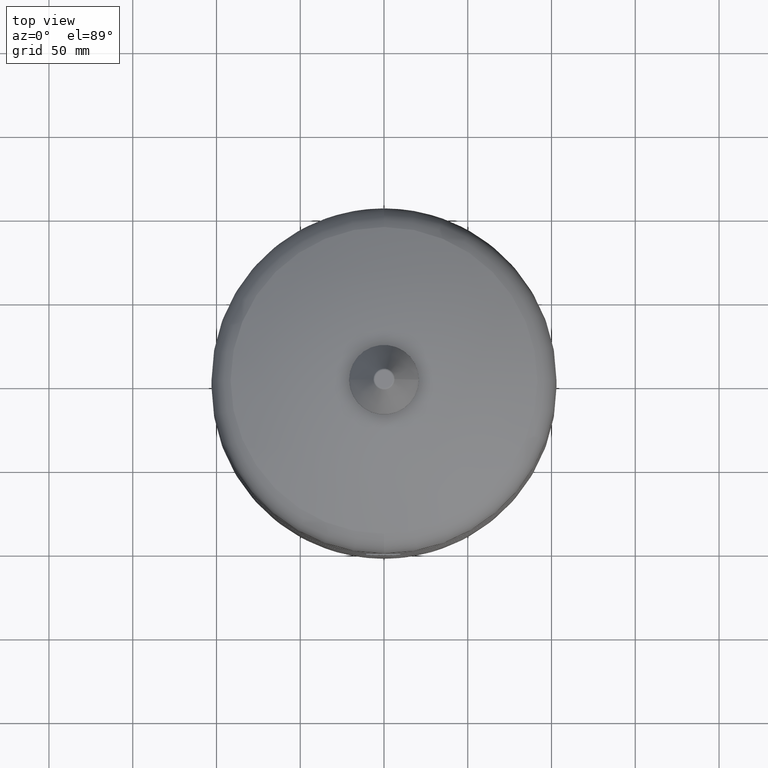
[diagram: clean part render]
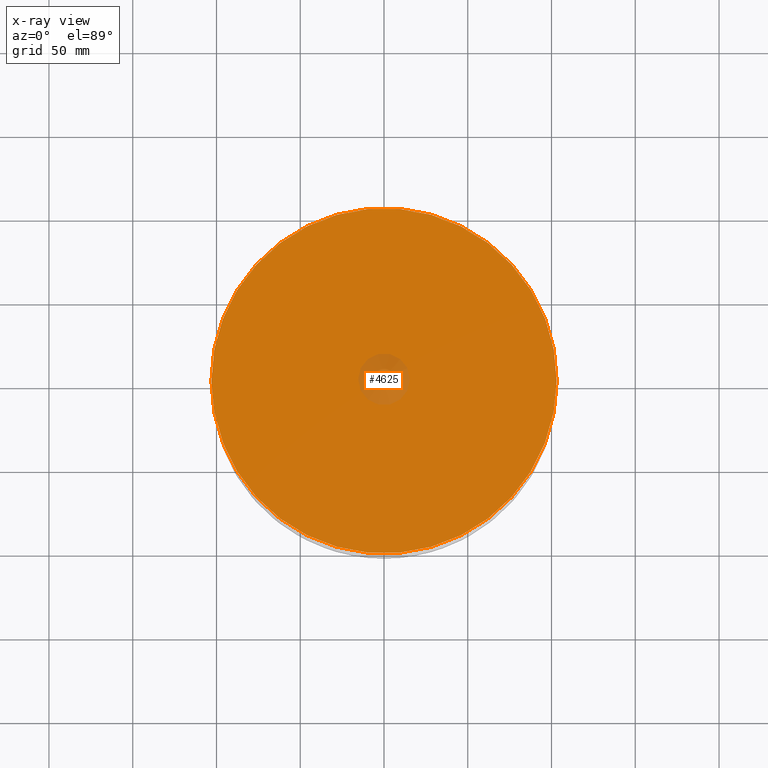
[diagram: x-ray — body ghosted, one internal face saturated and labeled with its STEP entity id]
A machine part, top view, then the same camera in x-ray: the body is ghosted and one INTERNAL B-rep face — a face not visible from any outside direction — is saturated and labeled: STEP entity #4625.
In plain terms, the highlighted planar face has unit normal (0, 0, -1).
Its self-contained STEP definition (entity closure, byte-faithful):
#4463=CARTESIAN_POINT('',(103.0,0.0,258.0));
#4464=VERTEX_POINT('',#4463);
#4473=CARTESIAN_POINT('',(-103.0,1.261345E-014,258.0));
#4474=VERTEX_POINT('',#4473);
#4475=CARTESIAN_POINT('',(-4.898587E-015,0.0,258.0));
#4476=DIRECTION('',(0.0,0.0,-1.0));
#4477=DIRECTION('',(1.0,0.0,0.0));
#4478=AXIS2_PLACEMENT_3D('',#4475,#4476,#4477);
#4479=CIRCLE('',#4478,103.0);
#4480=EDGE_CURVE('',#4474,#4464,#4479,.T.);
#4606=CARTESIAN_POINT('',(-4.898587E-015,0.0,258.0));
#4607=DIRECTION('',(0.0,0.0,-1.0));
#4608=DIRECTION('',(1.0,0.0,0.0));
#4609=AXIS2_PLACEMENT_3D('',#4606,#4607,#4608);
#4610=CIRCLE('',#4609,103.0);
#4611=EDGE_CURVE('',#4464,#4474,#4610,.T.);
#4616=CARTESIAN_POINT('',(51.499999999999993,-1.305246E-030,258.0));
#4617=DIRECTION('',(0.0,0.0,-1.0));
#4618=DIRECTION('',(0.0,-1.0,0.0));
#4619=AXIS2_PLACEMENT_3D('',#4616,#4617,#4618);
#4620=PLANE('',#4619);
#4621=ORIENTED_EDGE('',*,*,#4611,.T.);
#4622=ORIENTED_EDGE('',*,*,#4480,.T.);
#4623=EDGE_LOOP('',(#4621,#4622));
#4624=FACE_OUTER_BOUND('',#4623,.T.);
#4625=ADVANCED_FACE('',(#4624),#4620,.T.);